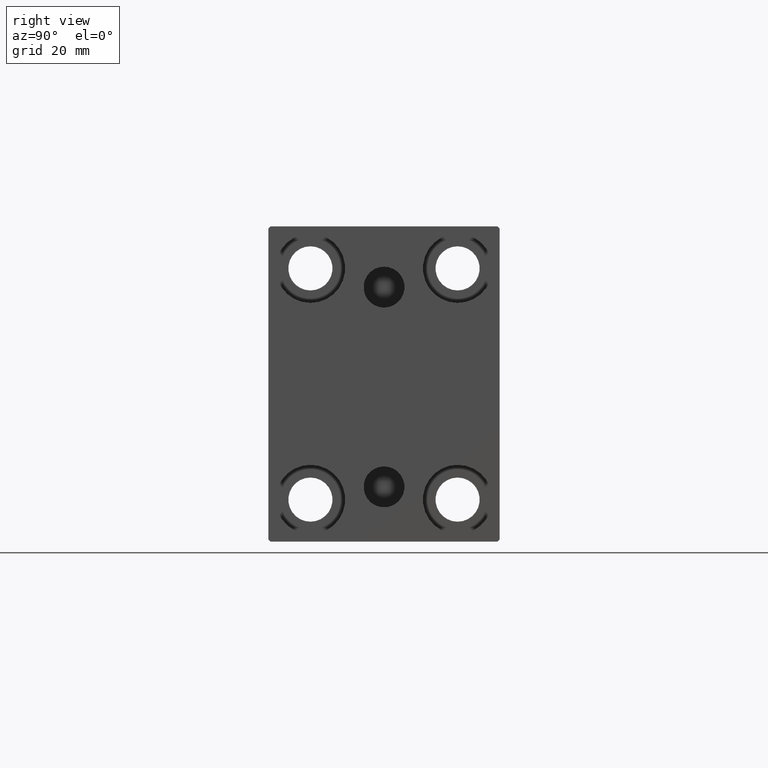
[diagram: clean part render]
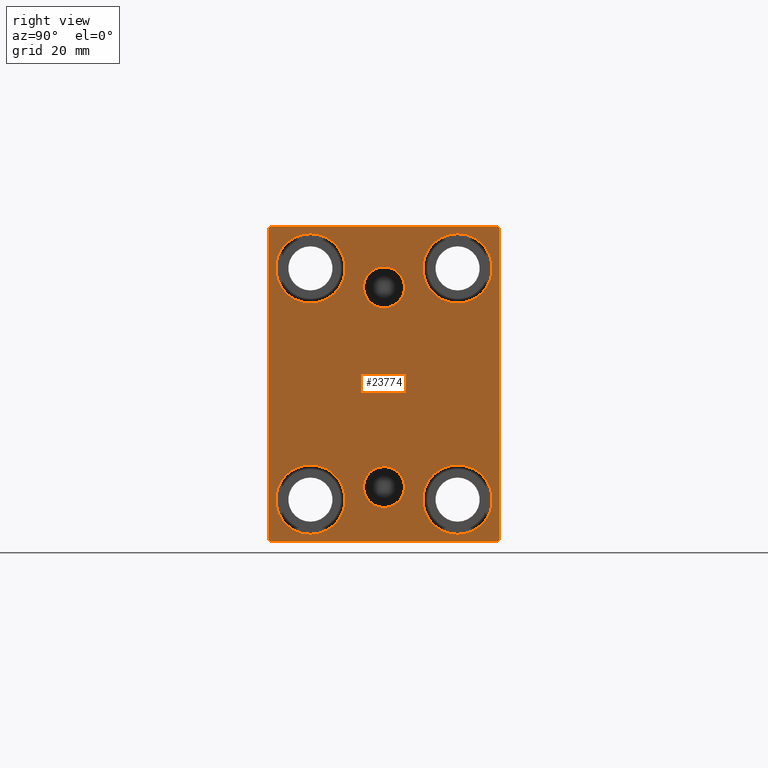
[diagram: same view with one face highlighted and labeled with its STEP entity id]
A machine part, right view. The second image highlights one B-rep face of the part: STEP entity #23774.
In plain terms, the highlighted planar face has unit normal (1, 0, 0).
Its self-contained STEP definition (entity closure, byte-faithful):
#7 = CARTESIAN_POINT ( 'NONE',  ( 135.0000000000000000, -27.50000000000000355, 37.00000000000001421 ) ) ;
#328 = VERTEX_POINT ( 'NONE', #15605 ) ;
#529 = ORIENTED_EDGE ( 'NONE', *, *, #34397, .T. ) ;
#599 = FACE_BOUND ( 'NONE', #40276, .T. ) ;
#636 = LINE ( 'NONE', #9884, #29125 ) ;
#912 = LINE ( 'NONE', #40576, #13902 ) ;
#1027 = FACE_BOUND ( 'NONE', #33606, .T. ) ;
#1076 = EDGE_CURVE ( 'NONE', #28710, #328, #37542, .T. ) ;
#1077 = CARTESIAN_POINT ( 'NONE',  ( 135.0000000000000000, -17.49999999999999645, 35.74999999999999289 ) ) ;
#1143 = CARTESIAN_POINT ( 'NONE',  ( 135.0000000000000000, -27.50000000000000355, 37.50000000000000000 ) ) ;
#1285 = CARTESIAN_POINT ( 'NONE',  ( 135.0000000000000000, 3.595563002296627957E-15, -19.63999999999999346 ) ) ;
#1327 = CARTESIAN_POINT ( 'NONE',  ( 135.0000000000000000, 17.50000000000000355, 35.74999999999999289 ) ) ;
#1353 = ORIENTED_EDGE ( 'NONE', *, *, #6201, .T. ) ;
#1752 = DIRECTION ( 'NONE',  ( -0.000000000000000000, 0.7071067811865474617, 0.7071067811865474617 ) ) ;
#2099 = ORIENTED_EDGE ( 'NONE', *, *, #11336, .F. ) ;
#2240 = CARTESIAN_POINT ( 'NONE',  ( 135.0000000000000000, -32.25000000000000711, 32.25000000000000711 ) ) ;
#2502 = VECTOR ( 'NONE', #42550, 1000.000000000000114 ) ;
#2701 = EDGE_CURVE ( 'NONE', #24738, #22411, #20641, .T. ) ;
#3265 = AXIS2_PLACEMENT_3D ( 'NONE', #8727, #41993, #18433 ) ;
#3451 = CARTESIAN_POINT ( 'NONE',  ( 135.0000000000000000, 17.49999999999999645, -27.50000000000000355 ) ) ;
#3456 = VERTEX_POINT ( 'NONE', #28411 ) ;
#3478 = EDGE_CURVE ( 'NONE', #8564, #4662, #41847, .T. ) ;
#3772 = AXIS2_PLACEMENT_3D ( 'NONE', #20324, #13695, #30435 ) ;
#3810 = AXIS2_PLACEMENT_3D ( 'NONE', #10047, #23489, #9174 ) ;
#4252 = CARTESIAN_POINT ( 'NONE',  ( 135.0000000000000000, 27.49999999999999645, 37.00000000000004263 ) ) ;
#4344 = CARTESIAN_POINT ( 'NONE',  ( 135.0000000000000000, 0.000000000000000000, 0.000000000000000000 ) ) ;
#4390 = EDGE_LOOP ( 'NONE', ( #529, #17092, #18230, #6430, #40105, #1353, #32858, #21599 ) ) ;
#4520 = CARTESIAN_POINT ( 'NONE',  ( 135.0000000000000000, -27.00000000000001776, -37.50000000000000000 ) ) ;
#4565 = AXIS2_PLACEMENT_3D ( 'NONE', #8318, #38696, #17804 ) ;
#4605 = CIRCLE ( 'NONE', #10216, 8.250000000000000000 ) ;
#4662 = VERTEX_POINT ( 'NONE', #22559 ) ;
#5234 = CARTESIAN_POINT ( 'NONE',  ( 135.0000000000000000, 27.00000000000001776, -37.50000000000000000 ) ) ;
#5895 = EDGE_CURVE ( 'NONE', #20962, #26368, #4605, .T. ) ;
#6201 = EDGE_CURVE ( 'NONE', #22411, #16156, #35236, .T. ) ;
#6423 = VERTEX_POINT ( 'NONE', #40718 ) ;
#6430 = ORIENTED_EDGE ( 'NONE', *, *, #28069, .T. ) ;
#6797 = CIRCLE ( 'NONE', #3265, 8.249999999999992895 ) ;
#7201 = EDGE_CURVE ( 'NONE', #42416, #11116, #36369, .T. ) ;
#7206 = DIRECTION ( 'NONE',  ( 0.000000000000000000, 0.000000000000000000, -1.000000000000000000 ) ) ;
#7307 = VERTEX_POINT ( 'NONE', #10161 ) ;
#7654 = DIRECTION ( 'NONE',  ( 1.000000000000000000, 0.000000000000000000, 0.000000000000000000 ) ) ;
#7657 = CIRCLE ( 'NONE', #32254, 4.859999999999999432 ) ;
#7956 = DIRECTION ( 'NONE',  ( -1.000000000000000000, -0.000000000000000000, -0.000000000000000000 ) ) ;
#8318 = CARTESIAN_POINT ( 'NONE',  ( 135.0000000000000000, -17.49999999999999645, 27.49999999999999645 ) ) ;
#8564 = VERTEX_POINT ( 'NONE', #1077 ) ;
#8727 = CARTESIAN_POINT ( 'NONE',  ( 135.0000000000000000, 17.50000000000000355, 27.49999999999999645 ) ) ;
#9152 = DIRECTION ( 'NONE',  ( 1.000000000000000000, 0.000000000000000000, -0.000000000000000000 ) ) ;
#9174 = DIRECTION ( 'NONE',  ( 0.000000000000000000, 0.000000000000000000, 1.000000000000000000 ) ) ;
#9193 = DIRECTION ( 'NONE',  ( 1.000000000000000000, 0.000000000000000000, -0.000000000000000000 ) ) ;
#9366 = CIRCLE ( 'NONE', #24143, 8.249999999999992895 ) ;
#9545 = VECTOR ( 'NONE', #1752, 1000.000000000000114 ) ;
#9884 = CARTESIAN_POINT ( 'NONE',  ( 135.0000000000000000, 32.24999999999982947, 32.25000000000027001 ) ) ;
#10047 = CARTESIAN_POINT ( 'NONE',  ( 135.0000000000000000, 17.49999999999999645, -27.50000000000000355 ) ) ;
#10161 = CARTESIAN_POINT ( 'NONE',  ( 135.0000000000000000, 27.00000000000002487, 37.50000000000000711 ) ) ;
#10216 = AXIS2_PLACEMENT_3D ( 'NONE', #18307, #7956, #31082 ) ;
#10378 = EDGE_CURVE ( 'NONE', #26368, #20962, #22877, .T. ) ;
#10398 = CARTESIAN_POINT ( 'NONE',  ( 135.0000000000000000, -32.24999999999963052, -32.25000000000052580 ) ) ;
#10940 = DIRECTION ( 'NONE',  ( 1.000000000000000000, 0.000000000000000000, 0.000000000000000000 ) ) ;
#11072 = DIRECTION ( 'NONE',  ( 0.000000000000000000, 0.000000000000000000, -1.000000000000000000 ) ) ;
#11116 = VERTEX_POINT ( 'NONE', #7 ) ;
#11272 = DIRECTION ( 'NONE',  ( 0.000000000000000000, -1.000000000000000000, -1.261617073437677999E-16 ) ) ;
#11336 = EDGE_CURVE ( 'NONE', #15164, #40887, #23649, .T. ) ;
#12026 = DIRECTION ( 'NONE',  ( 0.000000000000000000, 0.000000000000000000, 1.000000000000000000 ) ) ;
#12494 = AXIS2_PLACEMENT_3D ( 'NONE', #3451, #40009, #19750 ) ;
#12562 = EDGE_LOOP ( 'NONE', ( #36655, #13639 ) ) ;
#12886 = ORIENTED_EDGE ( 'NONE', *, *, #40411, .T. ) ;
#13256 = LINE ( 'NONE', #10398, #33447 ) ;
#13348 = EDGE_LOOP ( 'NONE', ( #12886, #19534 ) ) ;
#13536 = EDGE_CURVE ( 'NONE', #42193, #40506, #6797, .T. ) ;
#13639 = ORIENTED_EDGE ( 'NONE', *, *, #23201, .F. ) ;
#13695 = DIRECTION ( 'NONE',  ( 1.000000000000000000, 0.000000000000000000, 0.000000000000000000 ) ) ;
#13819 = FACE_OUTER_BOUND ( 'NONE', #4390, .T. ) ;
#13902 = VECTOR ( 'NONE', #11272, 1000.000000000000000 ) ;
#14076 = LINE ( 'NONE', #23115, #38476 ) ;
#14643 = EDGE_CURVE ( 'NONE', #4662, #8564, #39163, .T. ) ;
#14723 = EDGE_CURVE ( 'NONE', #16156, #41033, #14076, .T. ) ;
#15148 = AXIS2_PLACEMENT_3D ( 'NONE', #31844, #28775, #12026 ) ;
#15164 = VERTEX_POINT ( 'NONE', #29339 ) ;
#15415 = VERTEX_POINT ( 'NONE', #23616 ) ;
#15605 = CARTESIAN_POINT ( 'NONE',  ( 135.0000000000000000, 17.49999999999999645, -19.25000000000000355 ) ) ;
#16156 = VERTEX_POINT ( 'NONE', #42736 ) ;
#16392 = DIRECTION ( 'NONE',  ( 0.000000000000000000, 0.000000000000000000, 1.000000000000000000 ) ) ;
#16653 = ORIENTED_EDGE ( 'NONE', *, *, #3478, .T. ) ;
#16898 = FACE_BOUND ( 'NONE', #13348, .T. ) ;
#17092 = ORIENTED_EDGE ( 'NONE', *, *, #7201, .T. ) ;
#17200 = EDGE_CURVE ( 'NONE', #11116, #3456, #18109, .T. ) ;
#17342 = FACE_BOUND ( 'NONE', #30895, .T. ) ;
#17804 = DIRECTION ( 'NONE',  ( 0.000000000000000000, 0.000000000000000000, 1.000000000000000000 ) ) ;
#18109 = LINE ( 'NONE', #1143, #19559 ) ;
#18230 = ORIENTED_EDGE ( 'NONE', *, *, #17200, .T. ) ;
#18254 = EDGE_LOOP ( 'NONE', ( #41364, #30890 ) ) ;
#18307 = CARTESIAN_POINT ( 'NONE',  ( 135.0000000000000000, -17.50000000000000355, -27.50000000000000355 ) ) ;
#18433 = DIRECTION ( 'NONE',  ( 0.000000000000000000, 0.000000000000000000, 1.000000000000000000 ) ) ;
#19298 = VECTOR ( 'NONE', #27905, 1000.000000000000000 ) ;
#19534 = ORIENTED_EDGE ( 'NONE', *, *, #13536, .T. ) ;
#19559 = VECTOR ( 'NONE', #11072, 1000.000000000000000 ) ;
#19735 = EDGE_CURVE ( 'NONE', #6423, #15415, #7657, .T. ) ;
#19750 = DIRECTION ( 'NONE',  ( 0.000000000000000000, 0.000000000000000000, 1.000000000000000000 ) ) ;
#20130 = AXIS2_PLACEMENT_3D ( 'NONE', #39366, #9193, #39801 ) ;
#20133 = AXIS2_PLACEMENT_3D ( 'NONE', #22801, #9152, #36233 ) ;
#20324 = CARTESIAN_POINT ( 'NONE',  ( 135.0000000000000000, -3.571693674697836683E-15, 23.00000000000000711 ) ) ;
#20422 = DIRECTION ( 'NONE',  ( 0.000000000000000000, 0.000000000000000000, -1.000000000000000000 ) ) ;
#20641 = LINE ( 'NONE', #34298, #19298 ) ;
#20962 = VERTEX_POINT ( 'NONE', #28779 ) ;
#20977 = CIRCLE ( 'NONE', #12494, 8.250000000000000000 ) ;
#21186 = ORIENTED_EDGE ( 'NONE', *, *, #29424, .F. ) ;
#21599 = ORIENTED_EDGE ( 'NONE', *, *, #43262, .T. ) ;
#22411 = VERTEX_POINT ( 'NONE', #5234 ) ;
#22559 = CARTESIAN_POINT ( 'NONE',  ( 135.0000000000000000, -17.49999999999999645, 19.25000000000000000 ) ) ;
#22801 = CARTESIAN_POINT ( 'NONE',  ( 135.0000000000000000, 3.000384657911015074E-15, -24.49999999999999289 ) ) ;
#22877 = CIRCLE ( 'NONE', #15148, 8.250000000000000000 ) ;
#23115 = CARTESIAN_POINT ( 'NONE',  ( 135.0000000000000000, 27.50000000000000355, -37.50000000000000000 ) ) ;
#23201 = EDGE_CURVE ( 'NONE', #15415, #6423, #31213, .T. ) ;
#23319 = DIRECTION ( 'NONE',  ( -0.000000000000000000, -0.7071067811865524577, 0.7071067811865426878 ) ) ;
#23489 = DIRECTION ( 'NONE',  ( -1.000000000000000000, -0.000000000000000000, -0.000000000000000000 ) ) ;
#23616 = CARTESIAN_POINT ( 'NONE',  ( 135.0000000000000000, -2.976515330312223406E-15, 27.86000000000000654 ) ) ;
#23649 = CIRCLE ( 'NONE', #20133, 4.859999999999999432 ) ;
#23774 = ADVANCED_FACE ( 'NONE', ( #30550, #1027, #17342, #599, #16898, #33861, #13819 ), #37591, .T. ) ;
#24143 = AXIS2_PLACEMENT_3D ( 'NONE', #28894, #39442, #32416 ) ;
#24149 = CARTESIAN_POINT ( 'NONE',  ( 135.0000000000000000, -3.571693674697836683E-15, 23.00000000000000711 ) ) ;
#24598 = CARTESIAN_POINT ( 'NONE',  ( 135.0000000000000000, 17.49999999999999645, -35.75000000000000711 ) ) ;
#24738 = VERTEX_POINT ( 'NONE', #4520 ) ;
#25045 = CARTESIAN_POINT ( 'NONE',  ( 135.0000000000000000, -17.50000000000000355, -35.75000000000000711 ) ) ;
#25047 = CARTESIAN_POINT ( 'NONE',  ( 135.0000000000000000, -27.00000000000001776, 37.50000000000000000 ) ) ;
#26368 = VERTEX_POINT ( 'NONE', #25045 ) ;
#26685 = DIRECTION ( 'NONE',  ( -0.000000000000000000, 0.7071067811865573427, -0.7071067811865376918 ) ) ;
#27297 = DIRECTION ( 'NONE',  ( 0.000000000000000000, -9.251858538542970348E-17, 1.000000000000000000 ) ) ;
#27339 = CARTESIAN_POINT ( 'NONE',  ( 135.0000000000000000, 17.50000000000000355, 19.25000000000000000 ) ) ;
#27905 = DIRECTION ( 'NONE',  ( 0.000000000000000000, 1.000000000000000000, 0.000000000000000000 ) ) ;
#28069 = EDGE_CURVE ( 'NONE', #3456, #24738, #13256, .T. ) ;
#28411 = CARTESIAN_POINT ( 'NONE',  ( 135.0000000000000000, -27.50000000000000355, -37.00000000000002842 ) ) ;
#28710 = VERTEX_POINT ( 'NONE', #24598 ) ;
#28775 = DIRECTION ( 'NONE',  ( -1.000000000000000000, -0.000000000000000000, -0.000000000000000000 ) ) ;
#28779 = CARTESIAN_POINT ( 'NONE',  ( 135.0000000000000000, -17.50000000000000355, -19.25000000000000355 ) ) ;
#28894 = CARTESIAN_POINT ( 'NONE',  ( 135.0000000000000000, 17.50000000000000355, 27.49999999999999645 ) ) ;
#29125 = VECTOR ( 'NONE', #23319, 1000.000000000000000 ) ;
#29339 = CARTESIAN_POINT ( 'NONE',  ( 135.0000000000000000, 3.000384657911015074E-15, -29.35999999999999233 ) ) ;
#29424 = EDGE_CURVE ( 'NONE', #40887, #15164, #39815, .T. ) ;
#29616 = DIRECTION ( 'NONE',  ( -1.000000000000000000, -0.000000000000000000, -0.000000000000000000 ) ) ;
#30178 = ORIENTED_EDGE ( 'NONE', *, *, #1076, .T. ) ;
#30435 = DIRECTION ( 'NONE',  ( 0.000000000000000000, 0.000000000000000000, -1.000000000000000000 ) ) ;
#30550 = FACE_BOUND ( 'NONE', #12562, .T. ) ;
#30890 = ORIENTED_EDGE ( 'NONE', *, *, #5895, .T. ) ;
#30895 = EDGE_LOOP ( 'NONE', ( #30178, #42097 ) ) ;
#31082 = DIRECTION ( 'NONE',  ( 0.000000000000000000, 0.000000000000000000, 1.000000000000000000 ) ) ;
#31213 = CIRCLE ( 'NONE', #3772, 4.859999999999999432 ) ;
#31844 = CARTESIAN_POINT ( 'NONE',  ( 135.0000000000000000, -17.50000000000000355, -27.50000000000000355 ) ) ;
#31922 = CARTESIAN_POINT ( 'NONE',  ( 135.0000000000000000, 32.25000000000000711, -32.25000000000000711 ) ) ;
#32254 = AXIS2_PLACEMENT_3D ( 'NONE', #24149, #10940, #20422 ) ;
#32416 = DIRECTION ( 'NONE',  ( 0.000000000000000000, 0.000000000000000000, 1.000000000000000000 ) ) ;
#32858 = ORIENTED_EDGE ( 'NONE', *, *, #14723, .T. ) ;
#33358 = CARTESIAN_POINT ( 'NONE',  ( 135.0000000000000000, -17.49999999999999645, 27.49999999999999645 ) ) ;
#33447 = VECTOR ( 'NONE', #26685, 1000.000000000000114 ) ;
#33606 = EDGE_LOOP ( 'NONE', ( #2099, #21186 ) ) ;
#33861 = FACE_BOUND ( 'NONE', #18254, .T. ) ;
#34298 = CARTESIAN_POINT ( 'NONE',  ( 135.0000000000000000, -27.50000000000000355, -37.50000000000000000 ) ) ;
#34397 = EDGE_CURVE ( 'NONE', #7307, #42416, #912, .T. ) ;
#35236 = LINE ( 'NONE', #31922, #9545 ) ;
#35838 = EDGE_CURVE ( 'NONE', #328, #28710, #20977, .T. ) ;
#36233 = DIRECTION ( 'NONE',  ( 0.000000000000000000, 0.000000000000000000, 1.000000000000000000 ) ) ;
#36369 = LINE ( 'NONE', #2240, #2502 ) ;
#36655 = ORIENTED_EDGE ( 'NONE', *, *, #19735, .F. ) ;
#37542 = CIRCLE ( 'NONE', #3810, 8.250000000000000000 ) ;
#37591 = PLANE ( 'NONE',  #39611 ) ;
#38476 = VECTOR ( 'NONE', #27297, 1000.000000000000000 ) ;
#38696 = DIRECTION ( 'NONE',  ( -1.000000000000000000, -0.000000000000000000, -0.000000000000000000 ) ) ;
#39163 = CIRCLE ( 'NONE', #42688, 8.249999999999992895 ) ;
#39366 = CARTESIAN_POINT ( 'NONE',  ( 135.0000000000000000, 3.000384657911015074E-15, -24.49999999999999289 ) ) ;
#39442 = DIRECTION ( 'NONE',  ( -1.000000000000000000, -0.000000000000000000, -0.000000000000000000 ) ) ;
#39611 = AXIS2_PLACEMENT_3D ( 'NONE', #4344, #7654, #7206 ) ;
#39801 = DIRECTION ( 'NONE',  ( 0.000000000000000000, 0.000000000000000000, 1.000000000000000000 ) ) ;
#39815 = CIRCLE ( 'NONE', #20130, 4.859999999999999432 ) ;
#40009 = DIRECTION ( 'NONE',  ( -1.000000000000000000, -0.000000000000000000, -0.000000000000000000 ) ) ;
#40105 = ORIENTED_EDGE ( 'NONE', *, *, #2701, .T. ) ;
#40276 = EDGE_LOOP ( 'NONE', ( #40513, #16653 ) ) ;
#40411 = EDGE_CURVE ( 'NONE', #40506, #42193, #9366, .T. ) ;
#40506 = VERTEX_POINT ( 'NONE', #27339 ) ;
#40513 = ORIENTED_EDGE ( 'NONE', *, *, #14643, .T. ) ;
#40576 = CARTESIAN_POINT ( 'NONE',  ( 135.0000000000000000, 27.49999999999999645, 37.50000000000000711 ) ) ;
#40718 = CARTESIAN_POINT ( 'NONE',  ( 135.0000000000000000, -3.571693674697836683E-15, 18.14000000000000767 ) ) ;
#40887 = VERTEX_POINT ( 'NONE', #1285 ) ;
#41033 = VERTEX_POINT ( 'NONE', #4252 ) ;
#41364 = ORIENTED_EDGE ( 'NONE', *, *, #10378, .T. ) ;
#41847 = CIRCLE ( 'NONE', #4565, 8.249999999999992895 ) ;
#41993 = DIRECTION ( 'NONE',  ( -1.000000000000000000, -0.000000000000000000, -0.000000000000000000 ) ) ;
#42097 = ORIENTED_EDGE ( 'NONE', *, *, #35838, .T. ) ;
#42193 = VERTEX_POINT ( 'NONE', #1327 ) ;
#42416 = VERTEX_POINT ( 'NONE', #25047 ) ;
#42550 = DIRECTION ( 'NONE',  ( 0.000000000000000000, -0.7071067811865474617, -0.7071067811865474617 ) ) ;
#42688 = AXIS2_PLACEMENT_3D ( 'NONE', #33358, #29616, #16392 ) ;
#42736 = CARTESIAN_POINT ( 'NONE',  ( 135.0000000000000000, 27.50000000000000355, -37.00000000000001421 ) ) ;
#43262 = EDGE_CURVE ( 'NONE', #41033, #7307, #636, .T. ) ;